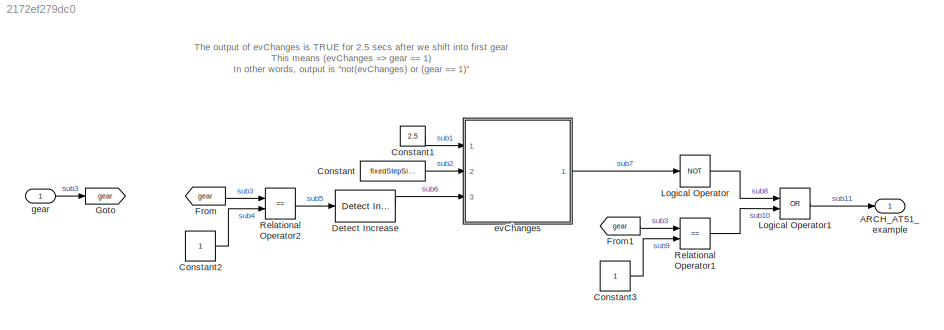
MODEL slx_2172ef279dc0
KIND model
CONFIG AbsTol = auto
CONFIG EnableMultiTasking = off
CONFIG FixedStep = fixedStepSize
CONFIG MaxStep = auto
CONFIG MinStep = auto
CONFIG RelTol = 1e-3
CONFIG SampleTimeConstraint = Unconstrained
CONFIG Solver = FixedStepAuto
CONFIG SolverName = FixedStepAuto
CONFIG StartTime = 0.0
CONFIG StopTime = 10.0
BLOCK [Outport] ARCH_AT51_example
  IconDisplay = Port number
  OutDataTypeStr = boolean
  PortDimensions = 1
  SamplingMode = Sample based
  SignalType = real
BLOCK [Constant] Constant
  Value = fixedStepSize
BLOCK [Constant] Constant1
  Value = 2.5
BLOCK [Constant] Constant2
BLOCK [Constant] Constant3
BLOCK [Reference] Detect Increase  REF=simulink/Logic and Bit
Operations/Detect
Increase
  Ports = [1, 1]
  SourceBlock = simulink/Logic and Bit\nOperations/Detect\nIncrease
  SourceProductBaseCode = SL
  SourceProductName = Simulink
  SourceType = Detect Increase
BLOCK [From] From
  GotoTag = gear
BLOCK [From] From1
  GotoTag = gear
BLOCK [Goto] Goto
  GotoTag = gear
BLOCK [Logic] Logical Operator
  AllPortsSameDT = off
  Operator = NOT
  OutDataTypeStr = boolean
  Ports = [1, 1]
BLOCK [Logic] Logical Operator1
  AllPortsSameDT = off
  Operator = OR
  OutDataTypeStr = boolean
  Ports = [2, 1]
BLOCK [RelationalOperator] Relational Operator1
  InputSameDT = off
  Operator = ==
  OutDataTypeStr = boolean
  Ports = [2, 1]
  RndMeth = Simplest
BLOCK [RelationalOperator] Relational Operator2
  InputSameDT = off
  Operator = ==
  OutDataTypeStr = boolean
  Ports = [2, 1]
  RndMeth = Simplest
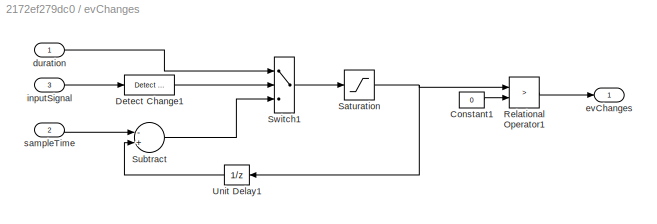
BLOCK [SubSystem] evChanges
  CopyFcn = set_param(gcbh,'LinkStatus','none');
  Ports = [3, 1]
  RequestExecContextInheritance = off
  Variant = off
BLOCK [Constant] evChanges/Constant1
  Value = 0
BLOCK [Reference] evChanges/Detect Change1  REF=simulink/Logic and Bit
Operations/Detect
Change
  Ports = [1, 1]
  SourceBlock = simulink/Logic and Bit\nOperations/Detect\nChange
  SourceProductBaseCode = SL
  SourceProductName = Simulink
  SourceType = Detect Change
BLOCK [RelationalOperator] evChanges/Relational Operator1
  InputSameDT = off
  Operator = >
  OutDataTypeStr = boolean
  Ports = [2, 1]
BLOCK [Saturate] evChanges/Saturation
  InputPortMap = u0
  LowerLimit = 0
  Ports = [1, 1]
  UpperLimit = Inf
BLOCK [Sum] evChanges/Subtract
  InputSameDT = off
  Inputs = -+
  OutDataTypeStr = Inherit: Inherit via internal rule
  Ports = [2, 1]
  SaturateOnIntegerOverflow = off
BLOCK [Switch] evChanges/Switch1
  Criteria = u2 ~= 0
  InputSameDT = off
  SaturateOnIntegerOverflow = off
BLOCK [UnitDelay] evChanges/Unit Delay1
  InputProcessing = Elements as channels (sample based)
  SampleTime = -1
BLOCK [Inport] evChanges/duration
  IconDisplay = Port number
BLOCK [Outport] evChanges/evChanges
  IconDisplay = Port number
BLOCK [Inport] evChanges/inputSignal
  IconDisplay = Port number
  Port = 3
BLOCK [Inport] evChanges/sampleTime
  IconDisplay = Port number
  Port = 2
BLOCK [Inport] gear
  IconDisplay = Port number
ANNOTATION (root): The output of evChanges is TRUE for 2.5 secs after we shift into first gear This means (evChanges => gear == 1) In other words, output is "not(evChanges) or (gear == 1)"
LINE Constant1:1 -> evChanges:1
LINE Constant2:1 -> Relational Operator2:2
LINE Constant3:1 -> Relational Operator1:2
LINE Constant:1 -> evChanges:2
LINE Detect Increase:1 -> evChanges:3
LINE From1:1 -> Relational Operator1:1
LINE From:1 -> Relational Operator2:1
LINE Logical Operator1:1 -> ARCH_AT51_example:1
LINE Logical Operator:1 -> Logical Operator1:1
LINE Relational Operator1:1 -> Logical Operator1:2
LINE Relational Operator2:1 -> Detect Increase:1
LINE evChanges/Constant1:1 -> evChanges/Relational Operator1:2
LINE evChanges/Detect Change1:1 -> evChanges/Switch1:2
LINE evChanges/Relational Operator1:1 -> evChanges/evChanges:1
NET evChanges/Saturation:1 -> evChanges/Relational Operator1:1, evChanges/Unit Delay1:1
LINE evChanges/Subtract:1 -> evChanges/Switch1:3
LINE evChanges/Switch1:1 -> evChanges/Saturation:1
LINE evChanges/Unit Delay1:1 -> evChanges/Subtract:2
LINE evChanges/duration:1 -> evChanges/Switch1:1
LINE evChanges/inputSignal:1 -> evChanges/Detect Change1:1
LINE evChanges/sampleTime:1 -> evChanges/Subtract:1
LINE evChanges:1 -> Logical Operator:1
LINE gear:1 -> Goto:1
note: NET lines group one-source signal fan-out (src -> all destinations, sorted); 1:1 wires keep LINE
